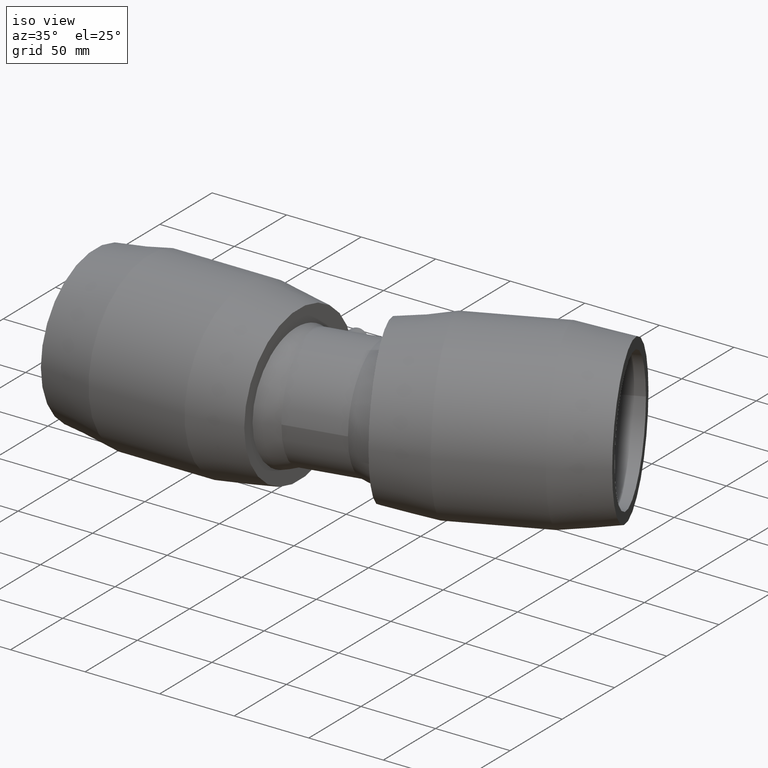
[diagram: clean part render]
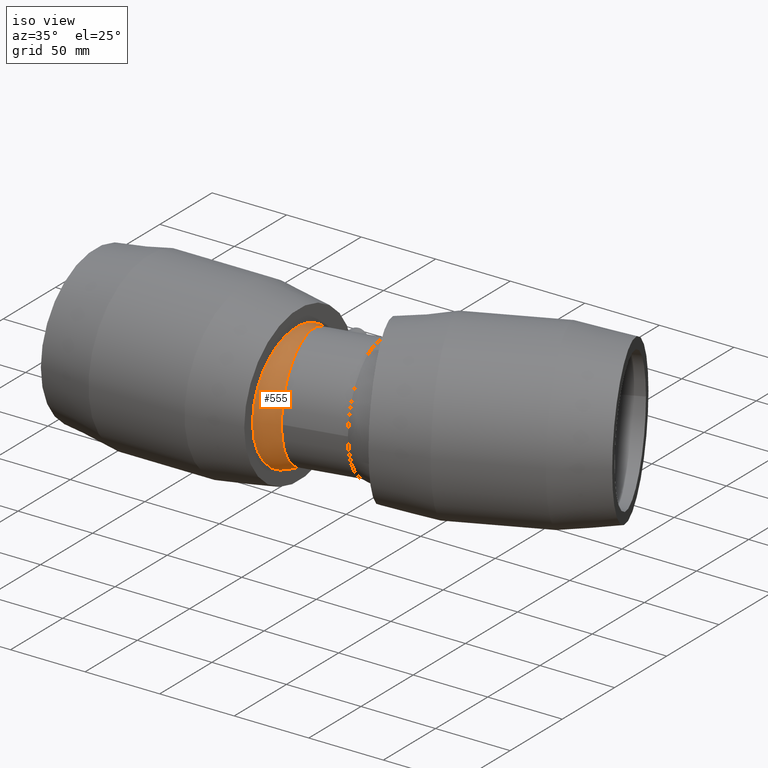
[diagram: same view with one face highlighted and labeled with its STEP entity id]
A machine part, iso view. The second image highlights one B-rep face of the part: STEP entity #555.
In plain terms, the highlighted spherical surface has radius 43.3324 mm.
Its self-contained STEP definition (entity closure, byte-faithful):
#66=FACE_BOUND('',#173,.T.);
#117=FACE_OUTER_BOUND('',#172,.T.);
#172=EDGE_LOOP('',(#442,#443));
#173=EDGE_LOOP('',(#444));
#275=B_SPLINE_CURVE_WITH_KNOTS('',3,(#1024,#1025,#1026,#1027,#1028,#1029,
#1030,#1031,#1032,#1033,#1034,#1035,#1036,#1037,#1038,#1039,#1040,#1041,
#1042,#1043,#1044,#1045,#1046,#1047,#1048,#1049,#1050),.UNSPECIFIED.,.F.,
 .F.,(4,2,2,2,2,2,3,2,2,2,2,2,4),(-4.10451747257301,-3.84078287543307,-3.06175513214027,
-2.2963163491052,-1.53087756607014,-0.765438783035066,0.,0.765438783035067,
1.53087756607013,2.2963163491052,3.06175513214027,3.84078287543306,4.10451747408565),
 .UNSPECIFIED.);
#284=CIRCLE('',#615,41.7832750033028);
#285=CIRCLE('',#616,39.3602213853872);
#333=VERTEX_POINT('',#1021);
#334=VERTEX_POINT('',#1022);
#335=VERTEX_POINT('',#1051);
#386=EDGE_CURVE('',#333,#334,#284,.T.);
#387=EDGE_CURVE('',#334,#333,#275,.T.);
#388=EDGE_CURVE('',#335,#335,#285,.T.);
#442=ORIENTED_EDGE('',*,*,#386,.F.);
#443=ORIENTED_EDGE('',*,*,#387,.F.);
#444=ORIENTED_EDGE('',*,*,#388,.T.);
#551=SPHERICAL_SURFACE('',#614,43.3324398102318);
#555=ADVANCED_FACE('',(#117,#66),#551,.T.);
#614=AXIS2_PLACEMENT_3D('',#1020,#723,#724);
#615=AXIS2_PLACEMENT_3D('',#1023,#725,#726);
#616=AXIS2_PLACEMENT_3D('',#1052,#727,#728);
#723=DIRECTION('center_axis',(0.,0.,1.));
#724=DIRECTION('ref_axis',(1.,0.,0.));
#725=DIRECTION('center_axis',(-1.,-1.83697019872103E-16,0.));
#726=DIRECTION('ref_axis',(0.,0.,1.));
#727=DIRECTION('center_axis',(-0.978147600733806,-0.20791169081776,0.));
#728=DIRECTION('ref_axis',(0.20791169081776,-0.978147600733806,0.));
#1020=CARTESIAN_POINT('Origin',(56.7170443741288,-2.44077756564459,0.));
#1021=CARTESIAN_POINT('',(68.2,20.410437288325,-34.9809097894745));
#1022=CARTESIAN_POINT('',(68.2,20.410437288325,34.9809097894745));
#1023=CARTESIAN_POINT('Origin',(68.2,-2.44077756564459,0.));
#1024=CARTESIAN_POINT('Ctrl Pts',(68.2,20.4104372883249,34.9809097894745));
#1025=CARTESIAN_POINT('Ctrl Pts',(68.0322024503034,21.1998626929243,34.5203009084775));
#1026=CARTESIAN_POINT('Ctrl Pts',(67.8645586530757,21.9712164859485,34.0343616753949));
#1027=CARTESIAN_POINT('Ctrl Pts',(67.2049147822861,24.9388514485721,32.0230676488185));
#1028=CARTESIAN_POINT('Ctrl Pts',(66.7188042073184,26.9728466211928,30.3190865692817));
#1029=CARTESIAN_POINT('Ctrl Pts',(65.8066282373248,30.538788944489,26.7196175001774));
#1030=CARTESIAN_POINT('Ctrl Pts',(65.3480581557063,32.200700880374,24.7048770409993));
#1031=CARTESIAN_POINT('Ctrl Pts',(64.4740999806822,35.1347017913777,20.3167127469352));
#1032=CARTESIAN_POINT('Ctrl Pts',(64.0585664701227,36.4070448193761,17.9434877448954));
#1033=CARTESIAN_POINT('Ctrl Pts',(63.3427930837658,38.4550745021215,12.9864830067047));
#1034=CARTESIAN_POINT('Ctrl Pts',(63.043098972889,39.2324828734122,10.3985091246086));
#1035=CARTESIAN_POINT('Ctrl Pts',(62.6354088517215,40.2550943167167,5.18112734237261));
#1036=CARTESIAN_POINT('Ctrl Pts',(62.5299577542845,40.5,2.55146261011688));
#1037=CARTESIAN_POINT('Ctrl Pts',(62.5299577542845,40.5,0.));
#1038=CARTESIAN_POINT('Ctrl Pts',(62.5299577542845,40.5,-2.55146261011689));
#1039=CARTESIAN_POINT('Ctrl Pts',(62.6354088517215,40.2550943167167,-5.18112734237261));
#1040=CARTESIAN_POINT('Ctrl Pts',(63.0430989728891,39.2324828734122,-10.3985091246086));
#1041=CARTESIAN_POINT('Ctrl Pts',(63.3427930837658,38.4550745021215,-12.9864830067047));
#1042=CARTESIAN_POINT('Ctrl Pts',(64.0585664701227,36.4070448193761,-17.9434877448954));
#1043=CARTESIAN_POINT('Ctrl Pts',(64.4740999806822,35.1347017913777,-20.3167127469352));
#1044=CARTESIAN_POINT('Ctrl Pts',(65.3480581557063,32.200700880374,-24.7048770409993));
#1045=CARTESIAN_POINT('Ctrl Pts',(65.8066282373248,30.538788944489,-26.7196175001774));
#1046=CARTESIAN_POINT('Ctrl Pts',(66.7188042073184,26.9728466211928,-30.3190865692817));
#1047=CARTESIAN_POINT('Ctrl Pts',(67.2049147822861,24.9388514485721,-32.0230676488185));
#1048=CARTESIAN_POINT('Ctrl Pts',(67.8645586540326,21.9712164816436,-34.0343616783126));
#1049=CARTESIAN_POINT('Ctrl Pts',(68.0322024507696,21.1998626907308,-34.5203009097574));
#1050=CARTESIAN_POINT('Ctrl Pts',(68.2,20.4104372883249,-34.9809097894745));
#1051=CARTESIAN_POINT('',(82.628278042825,-37.1727269735541,0.));
#1052=CARTESIAN_POINT('Origin',(74.4448278636278,1.32737913891391,0.));